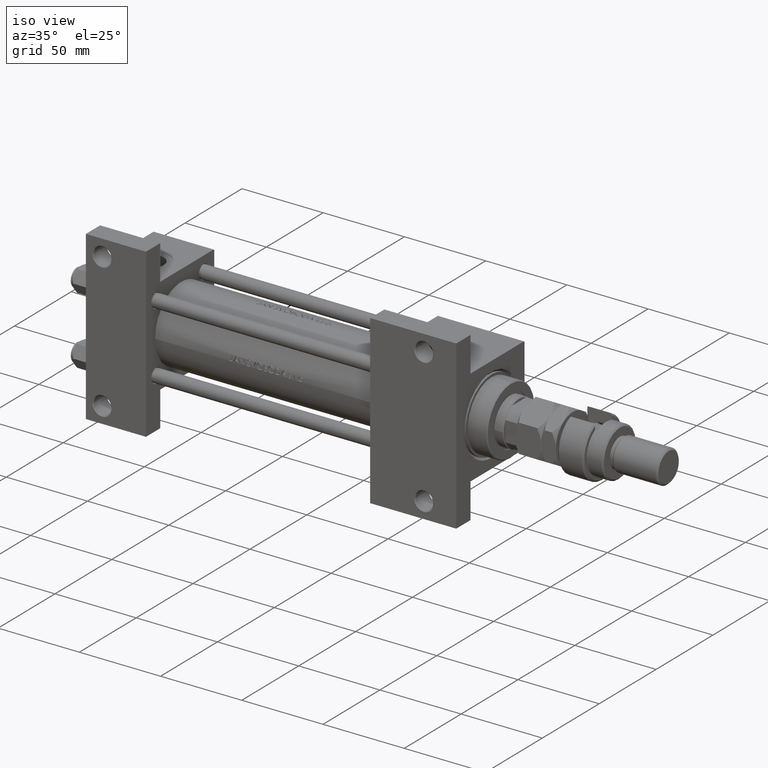
[diagram: clean part render]
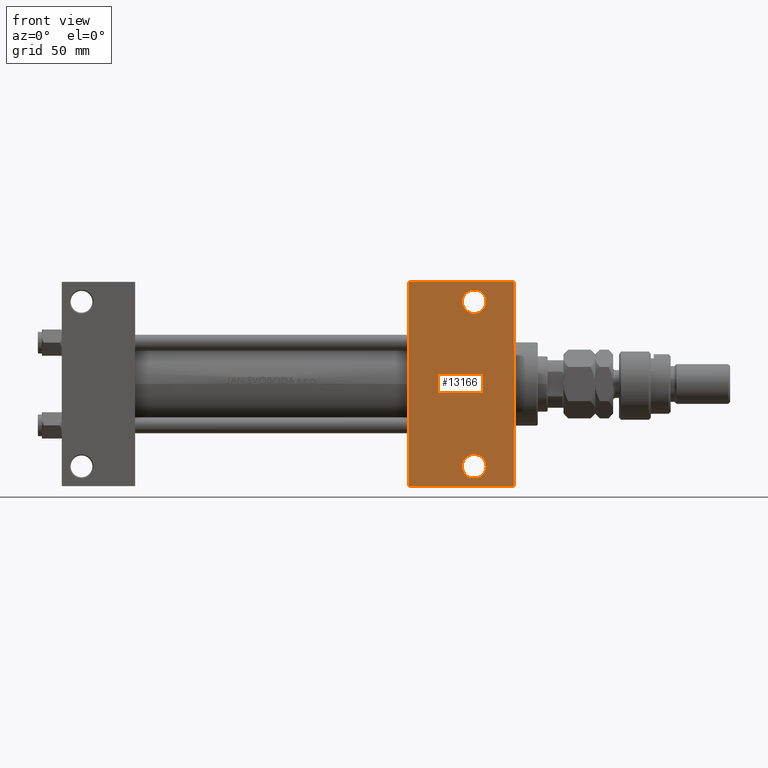
[diagram: tour spotlight — one face highlighted and labeled with its STEP entity id]
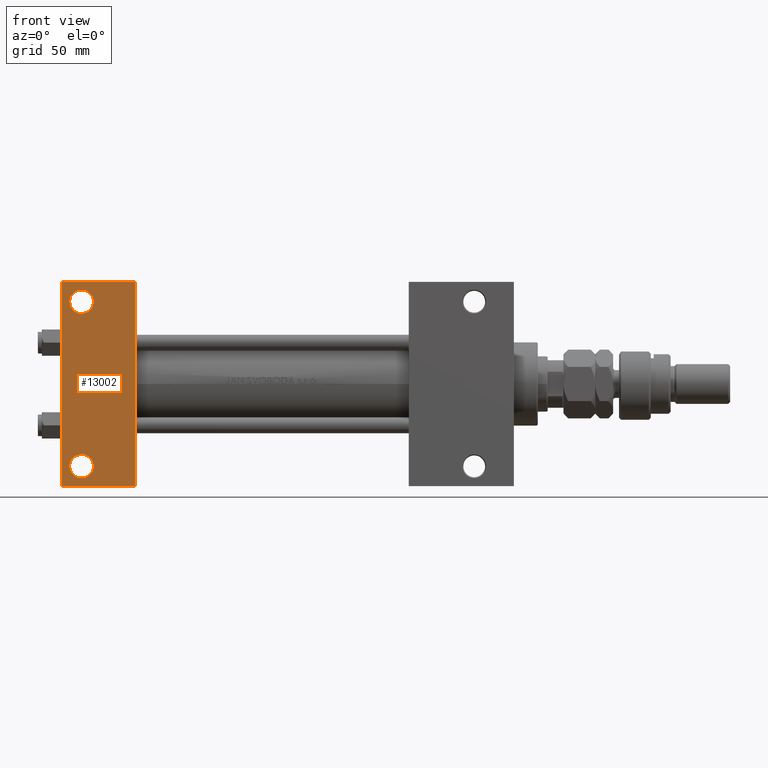
[diagram: tour spotlight — one face highlighted and labeled with its STEP entity id]
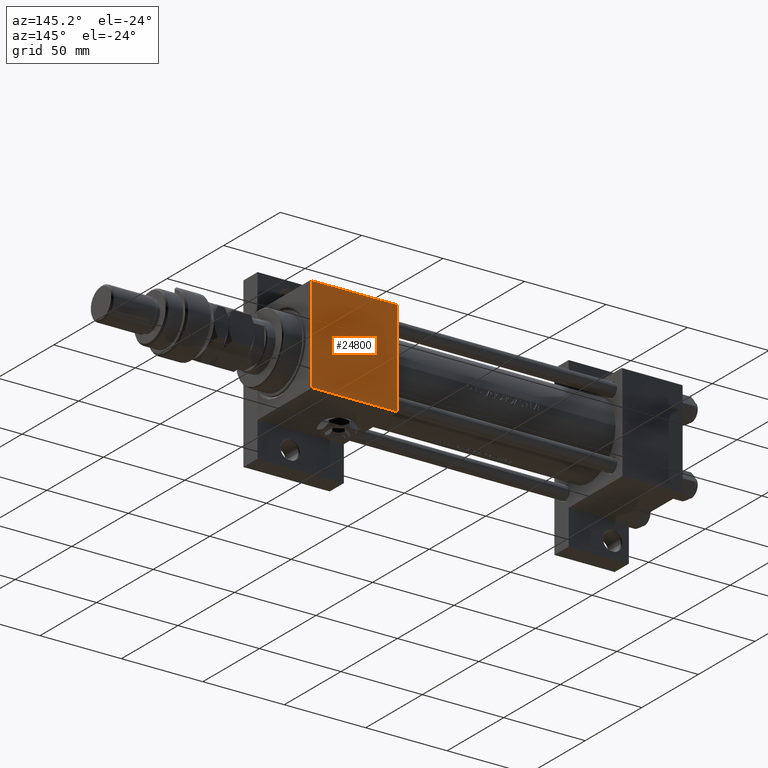
[diagram: tour spotlight — one face highlighted and labeled with its STEP entity id]
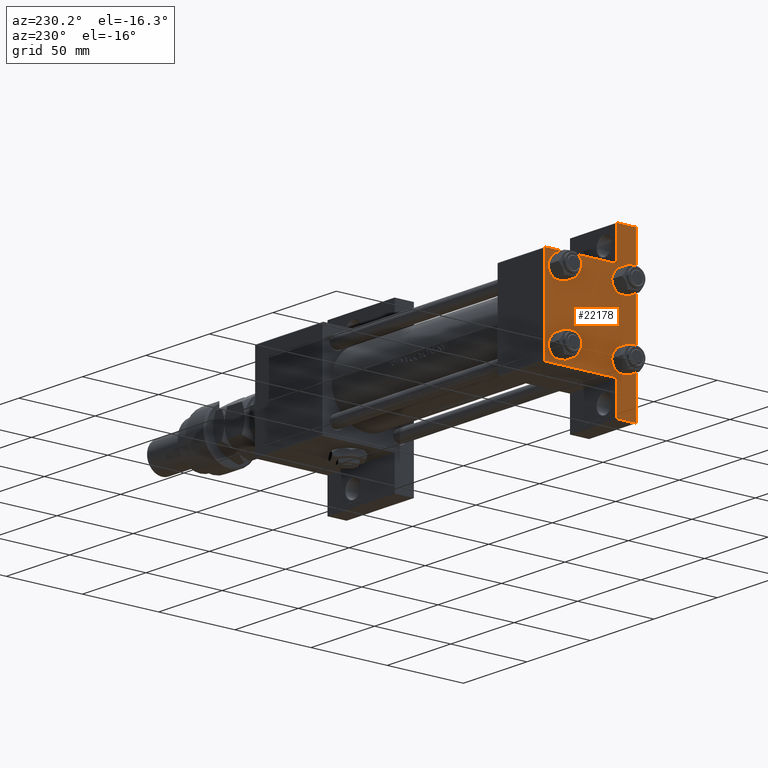
[diagram: tour spotlight — one face highlighted and labeled with its STEP entity id]
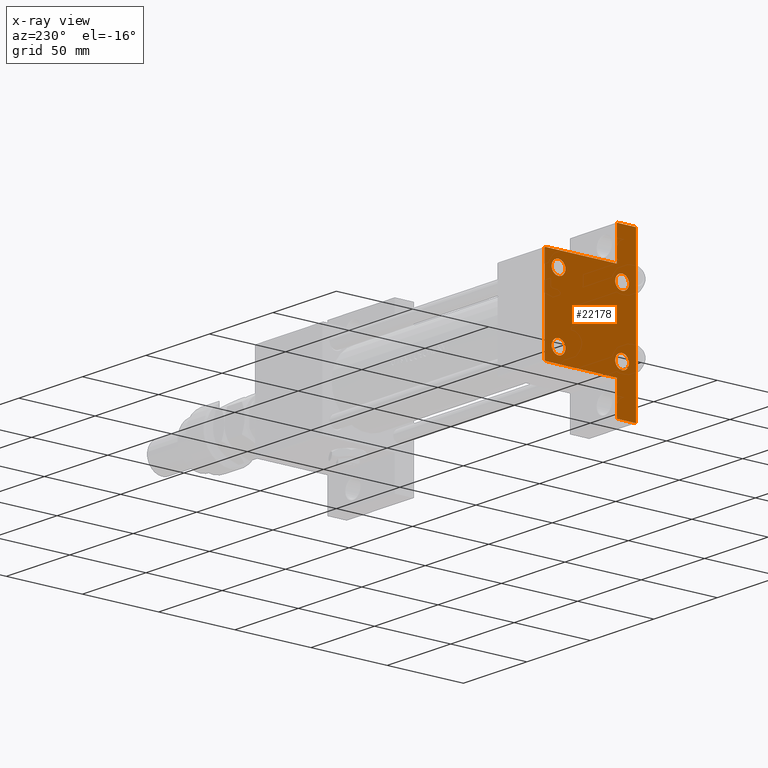
[diagram: x-ray of the same camera — body ghosted, this tour face saturated]
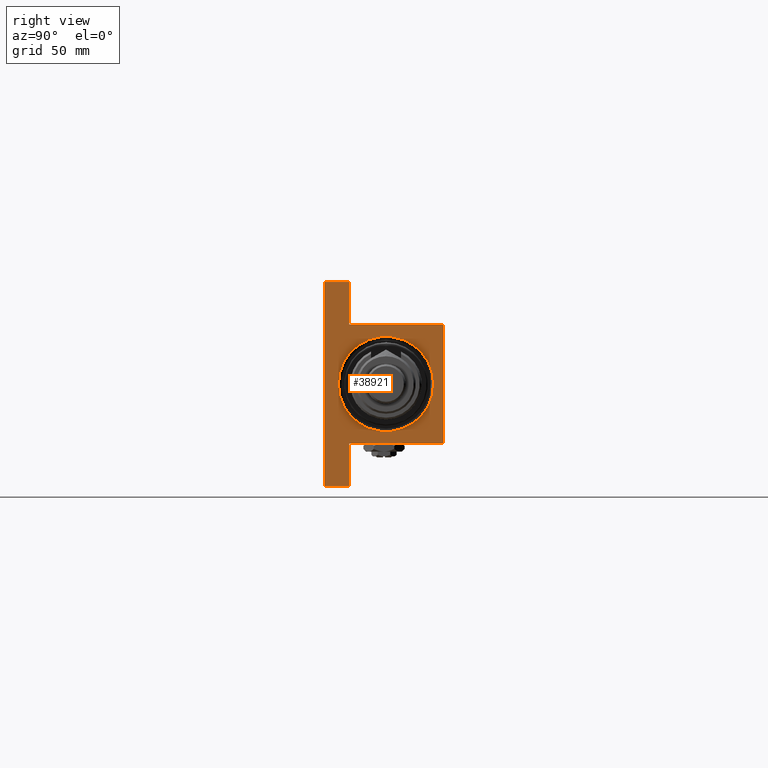
[diagram: tour spotlight — one face highlighted and labeled with its STEP entity id]
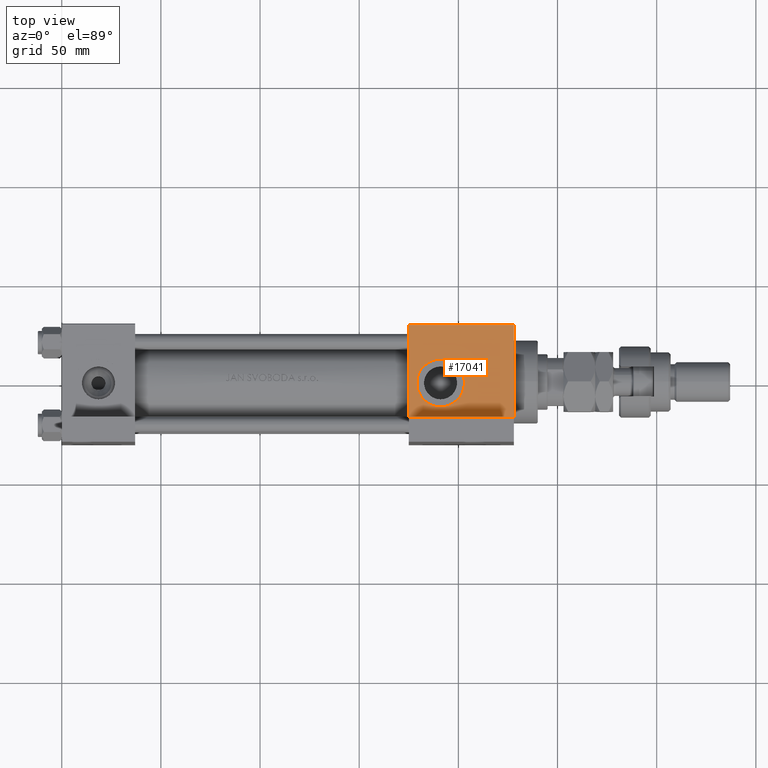
[diagram: tour spotlight — one face highlighted and labeled with its STEP entity id]
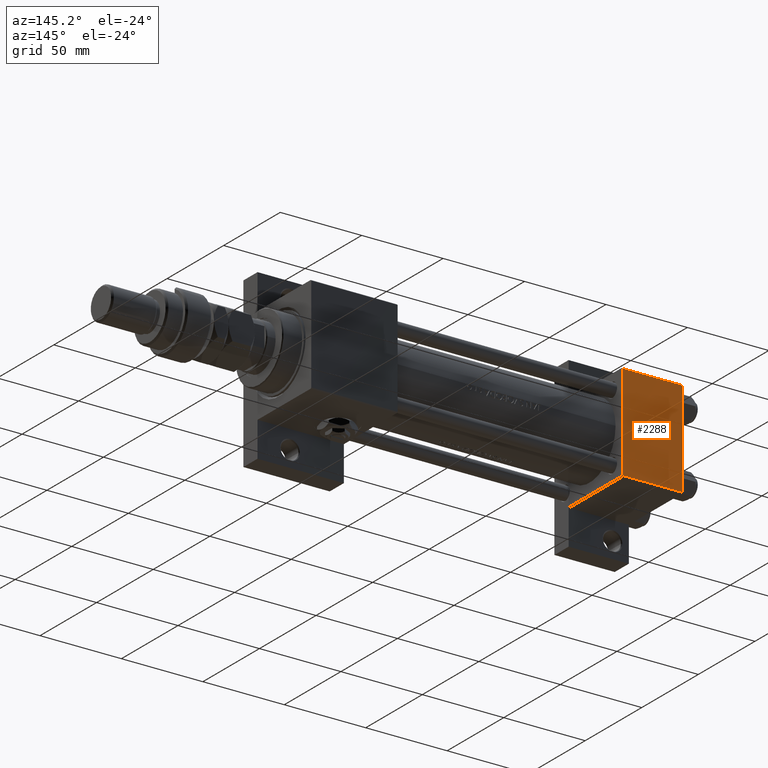
[diagram: tour spotlight — one face highlighted and labeled with its STEP entity id]
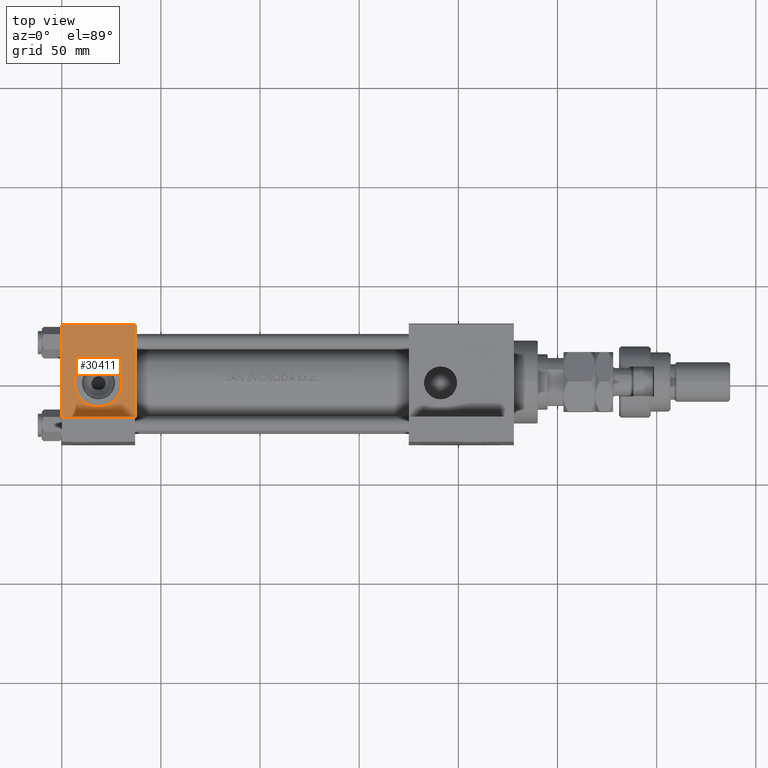
[diagram: tour spotlight — one face highlighted and labeled with its STEP entity id]
A machine part: a face-by-face anatomy tour. The part has 1220 B-rep faces; the first image is the clean iso view, then the 8 largest visible faces are spotlighted one at a time (largest first), each with its STEP entity span.

Face 1 — front view, entity #13166. In plain terms, the highlighted planar face has unit normal (0, -1, -0).
Definition (entity closure, byte-faithful):
#815 = CARTESIAN_POINT ( 'NONE',  ( 175.0000000000000284, -51.50000000000001421, -29.99999999999999645 ) ) ;
#914 = DIRECTION ( 'NONE',  ( -0.000000000000000000, -1.156482317317871478E-16, 1.000000000000000000 ) ) ;
#1617 = AXIS2_PLACEMENT_3D ( 'NONE', #31552, #11762, #32072 ) ;
#2023 = VERTEX_POINT ( 'NONE', #11838 ) ;
#2364 = EDGE_CURVE ( 'NONE', #44846, #30153, #34145, .T. ) ;
#2690 = ORIENTED_EDGE ( 'NONE', *, *, #21421, .T. ) ;
#3038 = ORIENTED_EDGE ( 'NONE', *, *, #2364, .T. ) ;
#3190 = VERTEX_POINT ( 'NONE', #47381 ) ;
#3395 = CARTESIAN_POINT ( 'NONE',  ( 175.0000000000000284, 30.00000000000000000, -29.99999999999999289 ) ) ;
#3881 = CARTESIAN_POINT ( 'NONE',  ( 228.0000000000000284, -51.50000000000000711, -29.99999999999999645 ) ) ;
#4472 = DIRECTION ( 'NONE',  ( -0.000000000000000000, -1.156482317317871478E-16, 1.000000000000000000 ) ) ;
#7073 = VERTEX_POINT ( 'NONE', #45793 ) ;
#7499 = EDGE_CURVE ( 'NONE', #41431, #8951, #19320, .T. ) ;
#8314 = FACE_BOUND ( 'NONE', #14612, .T. ) ;
#8920 = CARTESIAN_POINT ( 'NONE',  ( 208.0000000000000284, 41.49999999999999289, -29.99999999999999289 ) ) ;
#8951 = VERTEX_POINT ( 'NONE', #3881 ) ;
#9760 = LINE ( 'NONE', #815, #20271 ) ;
#11762 = DIRECTION ( 'NONE',  ( 0.000000000000000000, 1.156482317317871478E-16, -1.000000000000000000 ) ) ;
#11838 = CARTESIAN_POINT ( 'NONE',  ( 175.0000000000000284, -51.50000000000001421, -29.99999999999999645 ) ) ;
#11865 = CARTESIAN_POINT ( 'NONE',  ( 175.0000000000000284, 51.49999999999998579, -29.99999999999999645 ) ) ;
#12521 = AXIS2_PLACEMENT_3D ( 'NONE', #39578, #4472, #28216 ) ;
#13166 = ADVANCED_FACE ( 'NONE', ( #8314, #19438, #48172 ), #43441, .T. ) ;
#13363 = CARTESIAN_POINT ( 'NONE',  ( 213.9994999999999266, -41.49999999999999289, -30.00000000000000000 ) ) ;
#14128 = CIRCLE ( 'NONE', #38558, 5.999499999999935440 ) ;
#14612 = EDGE_LOOP ( 'NONE', ( #28743, #21119 ) ) ;
#17333 = AXIS2_PLACEMENT_3D ( 'NONE', #45753, #914, #29663 ) ;
#17961 = EDGE_CURVE ( 'NONE', #7073, #2023, #50646, .T. ) ;
#19320 = LINE ( 'NONE', #31440, #46018 ) ;
#19438 = FACE_BOUND ( 'NONE', #46023, .T. ) ;
#19544 = CARTESIAN_POINT ( 'NONE',  ( 228.0000000000000284, 51.49999999999996447, -29.99999999999999645 ) ) ;
#20271 = VECTOR ( 'NONE', #40910, 1000.000000000000000 ) ;
#20555 = DIRECTION ( 'NONE',  ( -0.000000000000000000, -1.156482317317871478E-16, 1.000000000000000000 ) ) ;
#21119 = ORIENTED_EDGE ( 'NONE', *, *, #44877, .T. ) ;
#21159 = AXIS2_PLACEMENT_3D ( 'NONE', #8920, #30020, #45333 ) ;
#21421 = EDGE_CURVE ( 'NONE', #30153, #44846, #25200, .T. ) ;
#24602 = VECTOR ( 'NONE', #26373, 1000.000000000000000 ) ;
#25200 = CIRCLE ( 'NONE', #12521, 5.999499999999935440 ) ;
#25657 = ORIENTED_EDGE ( 'NONE', *, *, #17961, .F. ) ;
#26244 = EDGE_CURVE ( 'NONE', #3190, #43559, #30405, .T. ) ;
#26373 = DIRECTION ( 'NONE',  ( 0.000000000000000000, -1.000000000000000000, -1.156482317317871478E-16 ) ) ;
#28008 = EDGE_CURVE ( 'NONE', #8951, #2023, #9760, .T. ) ;
#28216 = DIRECTION ( 'NONE',  ( 0.000000000000000000, 1.000000000000000000, 0.000000000000000000 ) ) ;
#28743 = ORIENTED_EDGE ( 'NONE', *, *, #26244, .T. ) ;
#29502 = CARTESIAN_POINT ( 'NONE',  ( 213.9994999999999550, 41.49999999999999289, -29.99999999999999289 ) ) ;
#29663 = DIRECTION ( 'NONE',  ( 0.000000000000000000, 1.000000000000000000, 0.000000000000000000 ) ) ;
#30020 = DIRECTION ( 'NONE',  ( -0.000000000000000000, -1.156482317317871478E-16, 1.000000000000000000 ) ) ;
#30153 = VERTEX_POINT ( 'NONE', #13363 ) ;
#30405 = CIRCLE ( 'NONE', #21159, 5.999499999999935440 ) ;
#31440 = CARTESIAN_POINT ( 'NONE',  ( 228.0000000000000000, 30.00000000000000000, -29.99999999999999289 ) ) ;
#31552 = CARTESIAN_POINT ( 'NONE',  ( 228.0000000000000000, 30.00000000000000000, -29.99999999999999289 ) ) ;
#31649 = DIRECTION ( 'NONE',  ( 1.000000000000000000, -3.927675794664467405E-16, 0.000000000000000000 ) ) ;
#32072 = DIRECTION ( 'NONE',  ( 0.000000000000000000, 1.000000000000000000, 1.156482317317871478E-16 ) ) ;
#34145 = CIRCLE ( 'NONE', #17333, 5.999499999999935440 ) ;
#35497 = ORIENTED_EDGE ( 'NONE', *, *, #49657, .T. ) ;
#36888 = VECTOR ( 'NONE', #31649, 1000.000000000000000 ) ;
#37166 = CARTESIAN_POINT ( 'NONE',  ( 208.0000000000000284, 41.49999999999999289, -29.99999999999999289 ) ) ;
#38558 = AXIS2_PLACEMENT_3D ( 'NONE', #37166, #20555, #40608 ) ;
#39578 = CARTESIAN_POINT ( 'NONE',  ( 208.0000000000000000, -41.49999999999999289, -30.00000000000000000 ) ) ;
#40608 = DIRECTION ( 'NONE',  ( 0.000000000000000000, 1.000000000000000000, 0.000000000000000000 ) ) ;
#40910 = DIRECTION ( 'NONE',  ( -1.000000000000000000, -1.309225264888155637E-16, -0.000000000000000000 ) ) ;
#41431 = VERTEX_POINT ( 'NONE', #19544 ) ;
#43441 = PLANE ( 'NONE',  #1617 ) ;
#43559 = VERTEX_POINT ( 'NONE', #29502 ) ;
#44846 = VERTEX_POINT ( 'NONE', #49577 ) ;
#44877 = EDGE_CURVE ( 'NONE', #43559, #3190, #14128, .T. ) ;
#44907 = ORIENTED_EDGE ( 'NONE', *, *, #28008, .T. ) ;
#45333 = DIRECTION ( 'NONE',  ( 0.000000000000000000, 1.000000000000000000, 0.000000000000000000 ) ) ;
#45753 = CARTESIAN_POINT ( 'NONE',  ( 208.0000000000000000, -41.49999999999999289, -30.00000000000000000 ) ) ;
#45793 = CARTESIAN_POINT ( 'NONE',  ( 175.0000000000000284, 51.49999999999998579, -29.99999999999999645 ) ) ;
#46018 = VECTOR ( 'NONE', #47544, 1000.000000000000000 ) ;
#46023 = EDGE_LOOP ( 'NONE', ( #3038, #2690 ) ) ;
#46732 = ORIENTED_EDGE ( 'NONE', *, *, #7499, .T. ) ;
#47381 = CARTESIAN_POINT ( 'NONE',  ( 202.0005000000000734, 41.49999999999999289, -29.99999999999999289 ) ) ;
#47544 = DIRECTION ( 'NONE',  ( 0.000000000000000000, -1.000000000000000000, -1.156482317317871478E-16 ) ) ;
#48172 = FACE_OUTER_BOUND ( 'NONE', #51286, .T. ) ;
#49577 = CARTESIAN_POINT ( 'NONE',  ( 202.0005000000000450, -41.49999999999999289, -30.00000000000000000 ) ) ;
#49657 = EDGE_CURVE ( 'NONE', #7073, #41431, #51972, .T. ) ;
#50646 = LINE ( 'NONE', #3395, #24602 ) ;
#51286 = EDGE_LOOP ( 'NONE', ( #25657, #35497, #46732, #44907 ) ) ;
#51972 = LINE ( 'NONE', #11865, #36888 ) ;

Face 2 — front view, entity #13002. In plain terms, the highlighted planar face has unit normal (0, -1, -0).
Definition (entity closure, byte-faithful):
#893 = CIRCLE ( 'NONE', #8428, 5.999499999999935440 ) ;
#1320 = DIRECTION ( 'NONE',  ( -1.000000000000000000, 1.875376730785737473E-16, -0.000000000000000000 ) ) ;
#2534 = DIRECTION ( 'NONE',  ( 0.000000000000000000, -1.000000000000000000, -1.156482317317871725E-16 ) ) ;
#3143 = EDGE_CURVE ( 'NONE', #4467, #27575, #6727, .T. ) ;
#3198 = ORIENTED_EDGE ( 'NONE', *, *, #43981, .T. ) ;
#3391 = VERTEX_POINT ( 'NONE', #34898 ) ;
#4467 = VERTEX_POINT ( 'NONE', #48149 ) ;
#5020 = PLANE ( 'NONE',  #10038 ) ;
#5699 = VERTEX_POINT ( 'NONE', #20792 ) ;
#5859 = CARTESIAN_POINT ( 'NONE',  ( 37.00000000000000000, -51.50000000000000000, -29.99999999999999289 ) ) ;
#5930 = DIRECTION ( 'NONE',  ( 1.000000000000000000, -1.875376730785737473E-16, 0.000000000000000000 ) ) ;
#6727 = LINE ( 'NONE', #29527, #45152 ) ;
#7945 = EDGE_CURVE ( 'NONE', #50499, #32158, #29182, .T. ) ;
#8023 = EDGE_LOOP ( 'NONE', ( #30318, #3198, #44573, #23361 ) ) ;
#8121 = AXIS2_PLACEMENT_3D ( 'NONE', #20646, #9023, #32763 ) ;
#8396 = EDGE_CURVE ( 'NONE', #5699, #3391, #14044, .T. ) ;
#8428 = AXIS2_PLACEMENT_3D ( 'NONE', #51626, #43190, #24638 ) ;
#8448 = CARTESIAN_POINT ( 'NONE',  ( 37.00000000000000000, 29.99999999999999289, -30.00000000000000000 ) ) ;
#8749 = EDGE_CURVE ( 'NONE', #32158, #50499, #30901, .T. ) ;
#9023 = DIRECTION ( 'NONE',  ( -0.000000000000000000, -1.156482317317871725E-16, 1.000000000000000000 ) ) ;
#9896 = CARTESIAN_POINT ( 'NONE',  ( 15.99949999999993366, 41.49999999999996447, -30.00000000000000000 ) ) ;
#10038 = AXIS2_PLACEMENT_3D ( 'NONE', #8448, #40911, #20861 ) ;
#10743 = LINE ( 'NONE', #22891, #20955 ) ;
#13002 = ADVANCED_FACE ( 'NONE', ( #44606, #16132, #32726 ), #5020, .T. ) ;
#13184 = EDGE_LOOP ( 'NONE', ( #22671, #41032 ) ) ;
#13584 = DIRECTION ( 'NONE',  ( 0.000000000000000000, 1.000000000000000000, 0.000000000000000000 ) ) ;
#14044 = CIRCLE ( 'NONE', #18270, 5.999499999999935440 ) ;
#15549 = VECTOR ( 'NONE', #1320, 1000.000000000000000 ) ;
#16132 = FACE_BOUND ( 'NONE', #37483, .T. ) ;
#18112 = DIRECTION ( 'NONE',  ( -0.000000000000000000, -1.156482317317871725E-16, 1.000000000000000000 ) ) ;
#18270 = AXIS2_PLACEMENT_3D ( 'NONE', #45506, #22007, #13584 ) ;
#20646 = CARTESIAN_POINT ( 'NONE',  ( 9.999999999999998224, 41.49999999999996447, -30.00000000000000000 ) ) ;
#20792 = CARTESIAN_POINT ( 'NONE',  ( 4.000500000000062784, -41.50000000000002132, -30.00000000000000711 ) ) ;
#20846 = ORIENTED_EDGE ( 'NONE', *, *, #28362, .T. ) ;
#20861 = DIRECTION ( 'NONE',  ( 0.000000000000000000, 1.000000000000000000, 1.156482317317871725E-16 ) ) ;
#20955 = VECTOR ( 'NONE', #47420, 1000.000000000000000 ) ;
#22007 = DIRECTION ( 'NONE',  ( -0.000000000000000000, -1.156482317317871725E-16, 1.000000000000000000 ) ) ;
#22671 = ORIENTED_EDGE ( 'NONE', *, *, #8749, .T. ) ;
#22734 = CARTESIAN_POINT ( 'NONE',  ( 1.301158300671771401E-14, 51.50000000000000711, -30.00000000000001421 ) ) ;
#22891 = CARTESIAN_POINT ( 'NONE',  ( 0.000000000000000000, 29.99999999999999289, -30.00000000000000000 ) ) ;
#23361 = ORIENTED_EDGE ( 'NONE', *, *, #41610, .T. ) ;
#24638 = DIRECTION ( 'NONE',  ( 0.000000000000000000, 1.000000000000000000, 0.000000000000000000 ) ) ;
#24984 = VECTOR ( 'NONE', #5930, 1000.000000000000000 ) ;
#25777 = DIRECTION ( 'NONE',  ( 0.000000000000000000, 1.000000000000000000, 0.000000000000000000 ) ) ;
#26482 = VERTEX_POINT ( 'NONE', #29952 ) ;
#27528 = ORIENTED_EDGE ( 'NONE', *, *, #8396, .T. ) ;
#27575 = VERTEX_POINT ( 'NONE', #5859 ) ;
#28362 = EDGE_CURVE ( 'NONE', #3391, #5699, #893, .T. ) ;
#29182 = CIRCLE ( 'NONE', #42660, 5.999499999999935440 ) ;
#29458 = CARTESIAN_POINT ( 'NONE',  ( 4.000500000000062784, 41.49999999999996447, -30.00000000000000000 ) ) ;
#29527 = CARTESIAN_POINT ( 'NONE',  ( 37.00000000000000000, 29.99999999999999289, -30.00000000000000000 ) ) ;
#29952 = CARTESIAN_POINT ( 'NONE',  ( 3.977209754999747208E-16, -51.49999999999999289, -29.99999999999999289 ) ) ;
#30318 = ORIENTED_EDGE ( 'NONE', *, *, #50235, .F. ) ;
#30901 = CIRCLE ( 'NONE', #8121, 5.999499999999935440 ) ;
#32158 = VERTEX_POINT ( 'NONE', #29458 ) ;
#32726 = FACE_OUTER_BOUND ( 'NONE', #8023, .T. ) ;
#32763 = DIRECTION ( 'NONE',  ( 0.000000000000000000, 1.000000000000000000, 0.000000000000000000 ) ) ;
#34009 = LINE ( 'NONE', #49602, #15549 ) ;
#34162 = LINE ( 'NONE', #42094, #24984 ) ;
#34898 = CARTESIAN_POINT ( 'NONE',  ( 15.99949999999993366, -41.50000000000002132, -30.00000000000000711 ) ) ;
#37483 = EDGE_LOOP ( 'NONE', ( #27528, #20846 ) ) ;
#37626 = CARTESIAN_POINT ( 'NONE',  ( 9.999999999999998224, 41.49999999999996447, -30.00000000000000000 ) ) ;
#40911 = DIRECTION ( 'NONE',  ( 0.000000000000000000, 1.156482317317871725E-16, -1.000000000000000000 ) ) ;
#41032 = ORIENTED_EDGE ( 'NONE', *, *, #7945, .T. ) ;
#41370 = VERTEX_POINT ( 'NONE', #22734 ) ;
#41610 = EDGE_CURVE ( 'NONE', #27575, #26482, #34009, .T. ) ;
#42094 = CARTESIAN_POINT ( 'NONE',  ( 1.301158300671771401E-14, 51.50000000000000711, -30.00000000000001421 ) ) ;
#42660 = AXIS2_PLACEMENT_3D ( 'NONE', #37626, #18112, #25777 ) ;
#43190 = DIRECTION ( 'NONE',  ( -0.000000000000000000, -1.156482317317871725E-16, 1.000000000000000000 ) ) ;
#43981 = EDGE_CURVE ( 'NONE', #41370, #4467, #34162, .T. ) ;
#44573 = ORIENTED_EDGE ( 'NONE', *, *, #3143, .T. ) ;
#44606 = FACE_BOUND ( 'NONE', #13184, .T. ) ;
#45152 = VECTOR ( 'NONE', #2534, 1000.000000000000000 ) ;
#45506 = CARTESIAN_POINT ( 'NONE',  ( 9.999999999999998224, -41.50000000000002132, -30.00000000000000711 ) ) ;
#47420 = DIRECTION ( 'NONE',  ( 0.000000000000000000, -1.000000000000000000, -1.156482317317871725E-16 ) ) ;
#48149 = CARTESIAN_POINT ( 'NONE',  ( 37.00000000000001421, 51.50000000000000000, -30.00000000000001421 ) ) ;
#49602 = CARTESIAN_POINT ( 'NONE',  ( 3.977209754999747208E-16, -51.49999999999999289, -29.99999999999999289 ) ) ;
#50235 = EDGE_CURVE ( 'NONE', #41370, #26482, #10743, .T. ) ;
#50499 = VERTEX_POINT ( 'NONE', #9896 ) ;
#51626 = CARTESIAN_POINT ( 'NONE',  ( 9.999999999999998224, -41.50000000000002132, -30.00000000000000711 ) ) ;

Face 3 — auxiliary view, entity #24800. In plain terms, the highlighted planar face has unit normal (0, -1, -0).
Definition (entity closure, byte-faithful):
#1890 = CARTESIAN_POINT ( 'NONE',  ( 175.0000000000000284, 30.00000000000000000, 30.00000000000000000 ) ) ;
#5918 = DIRECTION ( 'NONE',  ( 0.000000000000000000, -1.000000000000000000, -1.156482317317871478E-16 ) ) ;
#6331 = LINE ( 'NONE', #1890, #42307 ) ;
#6373 = CARTESIAN_POINT ( 'NONE',  ( 175.0000000000000284, -29.50000000000000000, 29.99999999999999289 ) ) ;
#7858 = LINE ( 'NONE', #16080, #40299 ) ;
#11622 = ORIENTED_EDGE ( 'NONE', *, *, #19963, .T. ) ;
#12299 = CARTESIAN_POINT ( 'NONE',  ( 175.0000000000000284, 29.50000000000000000, 30.00000000000000000 ) ) ;
#15351 = DIRECTION ( 'NONE',  ( 0.000000000000000000, 1.000000000000000000, 1.156482317317871478E-16 ) ) ;
#16080 = CARTESIAN_POINT ( 'NONE',  ( 228.0000000000000000, -29.50000000000000000, 29.99999999999999289 ) ) ;
#16179 = VERTEX_POINT ( 'NONE', #29716 ) ;
#16386 = VECTOR ( 'NONE', #5918, 1000.000000000000000 ) ;
#17988 = DIRECTION ( 'NONE',  ( 0.000000000000000000, -1.000000000000000000, -1.156482317317871478E-16 ) ) ;
#19963 = EDGE_CURVE ( 'NONE', #25603, #38034, #7858, .T. ) ;
#22212 = ORIENTED_EDGE ( 'NONE', *, *, #40347, .F. ) ;
#24800 = ADVANCED_FACE ( 'NONE', ( #38833 ), #47530, .F. ) ;
#25603 = VERTEX_POINT ( 'NONE', #6373 ) ;
#26074 = CARTESIAN_POINT ( 'NONE',  ( 175.0000000000000284, 29.50000000000000000, 30.00000000000000000 ) ) ;
#26201 = VECTOR ( 'NONE', #43199, 1000.000000000000000 ) ;
#27392 = EDGE_LOOP ( 'NONE', ( #22212, #29166, #35951, #11622 ) ) ;
#29166 = ORIENTED_EDGE ( 'NONE', *, *, #29170, .T. ) ;
#29170 = EDGE_CURVE ( 'NONE', #16179, #51280, #30273, .T. ) ;
#29716 = CARTESIAN_POINT ( 'NONE',  ( 228.0000000000000000, 29.50000000000000000, 30.00000000000000000 ) ) ;
#30273 = LINE ( 'NONE', #26074, #26201 ) ;
#30645 = CARTESIAN_POINT ( 'NONE',  ( 228.0000000000000000, 30.00000000000000000, 30.00000000000000000 ) ) ;
#32595 = EDGE_CURVE ( 'NONE', #51280, #25603, #6331, .T. ) ;
#35951 = ORIENTED_EDGE ( 'NONE', *, *, #32595, .T. ) ;
#38034 = VERTEX_POINT ( 'NONE', #47996 ) ;
#38363 = LINE ( 'NONE', #50000, #16386 ) ;
#38833 = FACE_OUTER_BOUND ( 'NONE', #27392, .T. ) ;
#39344 = DIRECTION ( 'NONE',  ( 0.000000000000000000, 1.156482317317871478E-16, -1.000000000000000000 ) ) ;
#40299 = VECTOR ( 'NONE', #48248, 1000.000000000000000 ) ;
#40347 = EDGE_CURVE ( 'NONE', #16179, #38034, #38363, .T. ) ;
#42307 = VECTOR ( 'NONE', #17988, 1000.000000000000000 ) ;
#43199 = DIRECTION ( 'NONE',  ( -1.000000000000000000, 0.000000000000000000, 0.000000000000000000 ) ) ;
#47530 = PLANE ( 'NONE',  #51472 ) ;
#47996 = CARTESIAN_POINT ( 'NONE',  ( 228.0000000000000000, -29.50000000000000000, 29.99999999999999289 ) ) ;
#48248 = DIRECTION ( 'NONE',  ( 1.000000000000000000, 0.000000000000000000, 0.000000000000000000 ) ) ;
#50000 = CARTESIAN_POINT ( 'NONE',  ( 228.0000000000000000, 30.00000000000000000, 30.00000000000000000 ) ) ;
#51280 = VERTEX_POINT ( 'NONE', #12299 ) ;
#51472 = AXIS2_PLACEMENT_3D ( 'NONE', #30645, #39344, #15351 ) ;

Face 4 — auxiliary view, entity #22178. An x-ray twin of the same camera follows (body ghosted, this face saturated) — the face is partly hidden behind the body. In plain terms, the highlighted planar face has unit normal (-1, 0, -0).
Definition (entity closure, byte-faithful):
#10 = DIRECTION ( 'NONE',  ( 0.000000000000000000, 0.000000000000000000, -1.000000000000000000 ) ) ;
#321 = EDGE_CURVE ( 'NONE', #17532, #48010, #33140, .T. ) ;
#1915 = ORIENTED_EDGE ( 'NONE', *, *, #11813, .F. ) ;
#2075 = ORIENTED_EDGE ( 'NONE', *, *, #47194, .F. ) ;
#2279 = EDGE_LOOP ( 'NONE', ( #43161, #25893 ) ) ;
#2549 = ORIENTED_EDGE ( 'NONE', *, *, #35024, .T. ) ;
#2877 = CARTESIAN_POINT ( 'NONE',  ( 3.977209754999747208E-16, -51.49999999999998579, 25.29310692155925366 ) ) ;
#3453 = LINE ( 'NONE', #40361, #14753 ) ;
#4709 = EDGE_CURVE ( 'NONE', #24670, #45888, #3453, .T. ) ;
#4740 = CARTESIAN_POINT ( 'NONE',  ( 0.000000000000000000, 29.49999999999999289, 30.00000000000000000 ) ) ;
#5790 = VERTEX_POINT ( 'NONE', #13918 ) ;
#6062 = AXIS2_PLACEMENT_3D ( 'NONE', #30874, #46203, #46982 ) ;
#6206 = VERTEX_POINT ( 'NONE', #18855 ) ;
#6452 = CARTESIAN_POINT ( 'NONE',  ( 0.000000000000000000, -29.49999999999998579, 29.99999999999999289 ) ) ;
#6591 = CARTESIAN_POINT ( 'NONE',  ( 0.000000000000000000, -20.84999999999999076, 20.85000000000000497 ) ) ;
#6608 = AXIS2_PLACEMENT_3D ( 'NONE', #25961, #42301, #30156 ) ;
#7348 = DIRECTION ( 'NONE',  ( 0.000000000000000000, 0.000000000000000000, 1.000000000000000000 ) ) ;
#9598 = CARTESIAN_POINT ( 'NONE',  ( 0.000000000000000000, -20.84999999999999076, 20.85000000000000497 ) ) ;
#9787 = DIRECTION ( 'NONE',  ( 0.000000000000000000, 0.000000000000000000, 1.000000000000000000 ) ) ;
#10500 = CIRCLE ( 'NONE', #46750, 4.500000000000017764 ) ;
#10743 = LINE ( 'NONE', #22891, #20955 ) ;
#11039 = CARTESIAN_POINT ( 'NONE',  ( -7.145701223179007990E-16, -29.99999999999999645, -17.49999999999999645 ) ) ;
#11088 = ORIENTED_EDGE ( 'NONE', *, *, #38119, .T. ) ;
#11427 = VERTEX_POINT ( 'NONE', #34142 ) ;
#11804 = ORIENTED_EDGE ( 'NONE', *, *, #32590, .T. ) ;
#11813 = EDGE_CURVE ( 'NONE', #5790, #26482, #39008, .T. ) ;
#12197 = VECTOR ( 'NONE', #29775, 1000.000000000000114 ) ;
#12555 = AXIS2_PLACEMENT_3D ( 'NONE', #43262, #27431, #7348 ) ;
#12680 = CARTESIAN_POINT ( 'NONE',  ( 0.000000000000000000, -20.84999999999999076, 16.34999999999998721 ) ) ;
#12862 = DIRECTION ( 'NONE',  ( 0.000000000000000000, -1.000000000000000000, -1.156482317317871725E-16 ) ) ;
#13098 = CARTESIAN_POINT ( 'NONE',  ( 0.000000000000000000, 20.84999999999999787, -20.85000000000000142 ) ) ;
#13702 = EDGE_LOOP ( 'NONE', ( #20910, #17094 ) ) ;
#13737 = LINE ( 'NONE', #22422, #34006 ) ;
#13918 = CARTESIAN_POINT ( 'NONE',  ( 3.977209754999747208E-16, -51.49999999999999289, -17.49999999999999645 ) ) ;
#14231 = CIRCLE ( 'NONE', #6608, 4.500000000000017764 ) ;
#14249 = AXIS2_PLACEMENT_3D ( 'NONE', #14778, #18995, #15037 ) ;
#14529 = ORIENTED_EDGE ( 'NONE', *, *, #37912, .T. ) ;
#14679 = VERTEX_POINT ( 'NONE', #18798 ) ;
#14753 = VECTOR ( 'NONE', #10, 1000.000000000000000 ) ;
#14778 = CARTESIAN_POINT ( 'NONE',  ( 0.000000000000000000, 0.000000000000000000, 0.000000000000000000 ) ) ;
#15037 = DIRECTION ( 'NONE',  ( -0.000000000000000000, 0.000000000000000000, 1.000000000000000000 ) ) ;
#15907 = LINE ( 'NONE', #28296, #52130 ) ;
#15970 = ORIENTED_EDGE ( 'NONE', *, *, #321, .F. ) ;
#16040 = CARTESIAN_POINT ( 'NONE',  ( 0.000000000000000000, -20.84999999999999076, -25.35000000000002274 ) ) ;
#16511 = EDGE_CURVE ( 'NONE', #14679, #11427, #37828, .T. ) ;
#16704 = EDGE_CURVE ( 'NONE', #45381, #48010, #15907, .T. ) ;
#16953 = VERTEX_POINT ( 'NONE', #19543 ) ;
#17094 = ORIENTED_EDGE ( 'NONE', *, *, #16511, .T. ) ;
#17532 = VERTEX_POINT ( 'NONE', #51863 ) ;
#17600 = CARTESIAN_POINT ( 'NONE',  ( 1.301158300671771559E-14, 51.50000000000001421, -17.49999999999999645 ) ) ;
#18283 = CARTESIAN_POINT ( 'NONE',  ( 0.000000000000000000, -20.84999999999999076, -16.34999999999998721 ) ) ;
#18488 = DIRECTION ( 'NONE',  ( 0.000000000000000000, 0.7071067811865474617, -0.7071067811865474617 ) ) ;
#18755 = DIRECTION ( 'NONE',  ( 1.000000000000000000, -0.000000000000000000, 0.000000000000000000 ) ) ;
#18781 = VERTEX_POINT ( 'NONE', #18283 ) ;
#18798 = CARTESIAN_POINT ( 'NONE',  ( 0.000000000000000000, 20.84999999999999787, 16.34999999999998366 ) ) ;
#18855 = CARTESIAN_POINT ( 'NONE',  ( 0.000000000000000000, 20.84999999999999787, -16.34999999999998366 ) ) ;
#18971 = DIRECTION ( 'NONE',  ( 0.000000000000000000, -1.734723475976807094E-16, -1.000000000000000000 ) ) ;
#18995 = DIRECTION ( 'NONE',  ( -1.000000000000000000, 0.000000000000000000, -0.000000000000000000 ) ) ;
#19268 = CIRCLE ( 'NONE', #38657, 4.500000000000017764 ) ;
#19345 = AXIS2_PLACEMENT_3D ( 'NONE', #26153, #18755, #9787 ) ;
#19543 = CARTESIAN_POINT ( 'NONE',  ( 0.000000000000000000, -20.84999999999999076, 25.35000000000002274 ) ) ;
#20354 = AXIS2_PLACEMENT_3D ( 'NONE', #13098, #37098, #49249 ) ;
#20561 = EDGE_CURVE ( 'NONE', #33887, #16953, #19268, .T. ) ;
#20910 = ORIENTED_EDGE ( 'NONE', *, *, #22160, .T. ) ;
#20955 = VECTOR ( 'NONE', #47420, 1000.000000000000000 ) ;
#22160 = EDGE_CURVE ( 'NONE', #11427, #14679, #36993, .T. ) ;
#22178 = ADVANCED_FACE ( 'NONE', ( #31885, #51178, #35590, #26921, #22962 ), #43773, .T. ) ;
#22422 = CARTESIAN_POINT ( 'NONE',  ( 1.301158300671771401E-14, 51.50000000000001421, 25.29310692155923590 ) ) ;
#22444 = DIRECTION ( 'NONE',  ( 1.000000000000000000, -0.000000000000000000, 0.000000000000000000 ) ) ;
#22734 = CARTESIAN_POINT ( 'NONE',  ( 1.301158300671771401E-14, 51.50000000000000711, -30.00000000000001421 ) ) ;
#22882 = CIRCLE ( 'NONE', #20354, 4.500000000000017764 ) ;
#22891 = CARTESIAN_POINT ( 'NONE',  ( 0.000000000000000000, 29.99999999999999289, -30.00000000000000000 ) ) ;
#22908 = EDGE_CURVE ( 'NONE', #6206, #26242, #35369, .T. ) ;
#22962 = FACE_OUTER_BOUND ( 'NONE', #32113, .T. ) ;
#23343 = CARTESIAN_POINT ( 'NONE',  ( 0.000000000000000000, -30.00000000000000000, 29.49999999999999289 ) ) ;
#23725 = LINE ( 'NONE', #39810, #47611 ) ;
#23772 = DIRECTION ( 'NONE',  ( 0.000000000000000000, 0.000000000000000000, 1.000000000000000000 ) ) ;
#24670 = VERTEX_POINT ( 'NONE', #23343 ) ;
#25713 = DIRECTION ( 'NONE',  ( 1.000000000000000000, -0.000000000000000000, 0.000000000000000000 ) ) ;
#25893 = ORIENTED_EDGE ( 'NONE', *, *, #20561, .T. ) ;
#25961 = CARTESIAN_POINT ( 'NONE',  ( 0.000000000000000000, -20.84999999999999076, -20.85000000000000497 ) ) ;
#25984 = VECTOR ( 'NONE', #18971, 1000.000000000000000 ) ;
#26153 = CARTESIAN_POINT ( 'NONE',  ( 0.000000000000000000, 20.84999999999999787, -20.85000000000000142 ) ) ;
#26242 = VERTEX_POINT ( 'NONE', #49042 ) ;
#26482 = VERTEX_POINT ( 'NONE', #29952 ) ;
#26921 = FACE_BOUND ( 'NONE', #13702, .T. ) ;
#27003 = AXIS2_PLACEMENT_3D ( 'NONE', #34602, #35633, #23772 ) ;
#27431 = DIRECTION ( 'NONE',  ( 1.000000000000000000, -0.000000000000000000, 0.000000000000000000 ) ) ;
#28296 = CARTESIAN_POINT ( 'NONE',  ( 0.000000000000000000, 29.99999999999999289, 30.00000000000000000 ) ) ;
#28508 = VECTOR ( 'NONE', #12862, 1000.000000000000000 ) ;
#29026 = EDGE_CURVE ( 'NONE', #45888, #5790, #37933, .T. ) ;
#29572 = DIRECTION ( 'NONE',  ( 0.000000000000000000, -1.734723475976807094E-16, -1.000000000000000000 ) ) ;
#29747 = ORIENTED_EDGE ( 'NONE', *, *, #16704, .T. ) ;
#29775 = DIRECTION ( 'NONE',  ( -0.000000000000000000, 0.7071067811865474617, 0.7071067811865474617 ) ) ;
#29952 = CARTESIAN_POINT ( 'NONE',  ( 3.977209754999747208E-16, -51.49999999999999289, -29.99999999999999289 ) ) ;
#30029 = LINE ( 'NONE', #45864, #12197 ) ;
#30156 = DIRECTION ( 'NONE',  ( 0.000000000000000000, 0.000000000000000000, 1.000000000000000000 ) ) ;
#30224 = EDGE_CURVE ( 'NONE', #26242, #6206, #22882, .T. ) ;
#30354 = DIRECTION ( 'NONE',  ( 0.000000000000000000, 0.000000000000000000, 1.000000000000000000 ) ) ;
#30874 = CARTESIAN_POINT ( 'NONE',  ( 0.000000000000000000, -20.84999999999999076, -20.85000000000000497 ) ) ;
#31276 = ORIENTED_EDGE ( 'NONE', *, *, #30224, .T. ) ;
#31885 = FACE_BOUND ( 'NONE', #2279, .T. ) ;
#32113 = EDGE_LOOP ( 'NONE', ( #32305, #11088, #2075, #14529, #29747, #15970, #2549, #32914, #1915, #34458 ) ) ;
#32305 = ORIENTED_EDGE ( 'NONE', *, *, #4709, .F. ) ;
#32590 = EDGE_CURVE ( 'NONE', #47128, #18781, #33902, .T. ) ;
#32914 = ORIENTED_EDGE ( 'NONE', *, *, #50235, .T. ) ;
#33140 = LINE ( 'NONE', #17600, #42513 ) ;
#33669 = DIRECTION ( 'NONE',  ( -2.966638294954184077E-16, -1.000000000000000000, 0.000000000000000000 ) ) ;
#33887 = VERTEX_POINT ( 'NONE', #12680 ) ;
#33902 = CIRCLE ( 'NONE', #6062, 4.500000000000017764 ) ;
#33946 = CARTESIAN_POINT ( 'NONE',  ( 0.000000000000000000, 29.99999999999999289, 30.00000000000000000 ) ) ;
#34006 = VECTOR ( 'NONE', #29572, 1000.000000000000000 ) ;
#34142 = CARTESIAN_POINT ( 'NONE',  ( 0.000000000000000000, 20.84999999999999787, 25.35000000000001918 ) ) ;
#34192 = ORIENTED_EDGE ( 'NONE', *, *, #51734, .T. ) ;
#34458 = ORIENTED_EDGE ( 'NONE', *, *, #29026, .F. ) ;
#34602 = CARTESIAN_POINT ( 'NONE',  ( 0.000000000000000000, 20.84999999999999787, 20.85000000000000142 ) ) ;
#35024 = EDGE_CURVE ( 'NONE', #17532, #41370, #13737, .T. ) ;
#35369 = CIRCLE ( 'NONE', #19345, 4.500000000000017764 ) ;
#35590 = FACE_BOUND ( 'NONE', #49050, .T. ) ;
#35633 = DIRECTION ( 'NONE',  ( 1.000000000000000000, -0.000000000000000000, 0.000000000000000000 ) ) ;
#36993 = CIRCLE ( 'NONE', #12555, 4.500000000000017764 ) ;
#37098 = DIRECTION ( 'NONE',  ( 1.000000000000000000, -0.000000000000000000, 0.000000000000000000 ) ) ;
#37404 = CARTESIAN_POINT ( 'NONE',  ( 3.977209754999743757E-16, -51.49999999999998579, -17.49999999999999645 ) ) ;
#37828 = CIRCLE ( 'NONE', #27003, 4.500000000000017764 ) ;
#37912 = EDGE_CURVE ( 'NONE', #38871, #45381, #23725, .T. ) ;
#37933 = LINE ( 'NONE', #37404, #49817 ) ;
#38119 = EDGE_CURVE ( 'NONE', #24670, #48034, #30029, .T. ) ;
#38606 = EDGE_CURVE ( 'NONE', #16953, #33887, #10500, .T. ) ;
#38657 = AXIS2_PLACEMENT_3D ( 'NONE', #6591, #22444, #30354 ) ;
#38871 = VERTEX_POINT ( 'NONE', #4740 ) ;
#39008 = LINE ( 'NONE', #2877, #25984 ) ;
#39810 = CARTESIAN_POINT ( 'NONE',  ( 0.000000000000000000, 29.74999999999999645, 29.74999999999999645 ) ) ;
#40361 = CARTESIAN_POINT ( 'NONE',  ( 0.000000000000000000, -30.00000000000000000, 29.99999999999999289 ) ) ;
#41370 = VERTEX_POINT ( 'NONE', #22734 ) ;
#41800 = DIRECTION ( 'NONE',  ( 0.000000000000000000, 0.000000000000000000, 1.000000000000000000 ) ) ;
#42301 = DIRECTION ( 'NONE',  ( 1.000000000000000000, -0.000000000000000000, 0.000000000000000000 ) ) ;
#42513 = VECTOR ( 'NONE', #33669, 1000.000000000000000 ) ;
#42640 = EDGE_LOOP ( 'NONE', ( #34192, #11804 ) ) ;
#43161 = ORIENTED_EDGE ( 'NONE', *, *, #38606, .T. ) ;
#43262 = CARTESIAN_POINT ( 'NONE',  ( 0.000000000000000000, 20.84999999999999787, 20.85000000000000142 ) ) ;
#43773 = PLANE ( 'NONE',  #14249 ) ;
#43874 = DIRECTION ( 'NONE',  ( 0.000000000000000000, 0.000000000000000000, -1.000000000000000000 ) ) ;
#44378 = CARTESIAN_POINT ( 'NONE',  ( 0.000000000000000000, 29.99999999999999289, 29.50000000000000000 ) ) ;
#45381 = VERTEX_POINT ( 'NONE', #44378 ) ;
#45864 = CARTESIAN_POINT ( 'NONE',  ( -0.000000000000000000, -29.74999999999999645, 29.74999999999999645 ) ) ;
#45888 = VERTEX_POINT ( 'NONE', #11039 ) ;
#46203 = DIRECTION ( 'NONE',  ( 1.000000000000000000, -0.000000000000000000, 0.000000000000000000 ) ) ;
#46750 = AXIS2_PLACEMENT_3D ( 'NONE', #9598, #25713, #41800 ) ;
#46982 = DIRECTION ( 'NONE',  ( 0.000000000000000000, 0.000000000000000000, 1.000000000000000000 ) ) ;
#47128 = VERTEX_POINT ( 'NONE', #16040 ) ;
#47194 = EDGE_CURVE ( 'NONE', #38871, #48034, #49275, .T. ) ;
#47420 = DIRECTION ( 'NONE',  ( 0.000000000000000000, -1.000000000000000000, -1.156482317317871725E-16 ) ) ;
#47611 = VECTOR ( 'NONE', #18488, 1000.000000000000114 ) ;
#48010 = VERTEX_POINT ( 'NONE', #52210 ) ;
#48034 = VERTEX_POINT ( 'NONE', #6452 ) ;
#48616 = ORIENTED_EDGE ( 'NONE', *, *, #22908, .T. ) ;
#49042 = CARTESIAN_POINT ( 'NONE',  ( 0.000000000000000000, 20.84999999999999787, -25.35000000000001918 ) ) ;
#49044 = DIRECTION ( 'NONE',  ( 5.173446966594771078E-17, -1.000000000000000000, 0.000000000000000000 ) ) ;
#49050 = EDGE_LOOP ( 'NONE', ( #48616, #31276 ) ) ;
#49249 = DIRECTION ( 'NONE',  ( 0.000000000000000000, 0.000000000000000000, 1.000000000000000000 ) ) ;
#49275 = LINE ( 'NONE', #33946, #28508 ) ;
#49817 = VECTOR ( 'NONE', #49044, 1000.000000000000000 ) ;
#50235 = EDGE_CURVE ( 'NONE', #41370, #26482, #10743, .T. ) ;
#51178 = FACE_BOUND ( 'NONE', #42640, .T. ) ;
#51734 = EDGE_CURVE ( 'NONE', #18781, #47128, #14231, .T. ) ;
#51863 = CARTESIAN_POINT ( 'NONE',  ( 1.301158300671771243E-14, 51.50000000000000711, -17.49999999999999645 ) ) ;
#52130 = VECTOR ( 'NONE', #43874, 1000.000000000000000 ) ;
#52210 = CARTESIAN_POINT ( 'NONE',  ( 0.000000000000000000, 29.99999999999999289, -17.49999999999999645 ) ) ;

Face 5 — right view, entity #38921. In plain terms, the highlighted planar face has unit normal (-1, 0, -0).
Definition (entity closure, byte-faithful):
#296 = EDGE_CURVE ( 'NONE', #1494, #16179, #40541, .T. ) ;
#1240 = VECTOR ( 'NONE', #28400, 1000.000000000000114 ) ;
#1494 = VERTEX_POINT ( 'NONE', #27834 ) ;
#1947 = ORIENTED_EDGE ( 'NONE', *, *, #7499, .F. ) ;
#2689 = ORIENTED_EDGE ( 'NONE', *, *, #32102, .T. ) ;
#2975 = CARTESIAN_POINT ( 'NONE',  ( 228.0000000000000000, -30.00000000000000000, 29.50000000000001776 ) ) ;
#3881 = CARTESIAN_POINT ( 'NONE',  ( 228.0000000000000284, -51.50000000000000711, -29.99999999999999645 ) ) ;
#4153 = CARTESIAN_POINT ( 'NONE',  ( 228.0000000000000284, -51.50000000000000711, -17.49999999999999645 ) ) ;
#4652 = DIRECTION ( 'NONE',  ( 0.000000000000000000, 0.000000000000000000, -1.000000000000000000 ) ) ;
#5240 = VECTOR ( 'NONE', #4652, 1000.000000000000000 ) ;
#5918 = DIRECTION ( 'NONE',  ( 0.000000000000000000, -1.000000000000000000, -1.156482317317871478E-16 ) ) ;
#6306 = AXIS2_PLACEMENT_3D ( 'NONE', #46668, #45890, #18712 ) ;
#6650 = LINE ( 'NONE', #2975, #43664 ) ;
#6740 = CARTESIAN_POINT ( 'NONE',  ( 228.0000000000000284, 51.49999999999996447, -17.49999999999999645 ) ) ;
#7499 = EDGE_CURVE ( 'NONE', #41431, #8951, #19320, .T. ) ;
#8015 = EDGE_LOOP ( 'NONE', ( #51084, #34072 ) ) ;
#8604 = CARTESIAN_POINT ( 'NONE',  ( 228.0000000000000000, 29.50000000000000000, 30.00000000000000000 ) ) ;
#8803 = ORIENTED_EDGE ( 'NONE', *, *, #39726, .T. ) ;
#8819 = EDGE_CURVE ( 'NONE', #10517, #28847, #44383, .T. ) ;
#8842 = AXIS2_PLACEMENT_3D ( 'NONE', #35815, #51931, #39012 ) ;
#8951 = VERTEX_POINT ( 'NONE', #3881 ) ;
#9282 = DIRECTION ( 'NONE',  ( -1.000000000000000000, 0.000000000000000000, -0.000000000000000000 ) ) ;
#10517 = VERTEX_POINT ( 'NONE', #15402 ) ;
#10542 = CARTESIAN_POINT ( 'NONE',  ( 228.0000000000000000, 2.939152317953647500E-15, 25.00000000000000355 ) ) ;
#11190 = LINE ( 'NONE', #23329, #26848 ) ;
#11736 = ORIENTED_EDGE ( 'NONE', *, *, #39798, .T. ) ;
#11841 = VERTEX_POINT ( 'NONE', #4153 ) ;
#12305 = CARTESIAN_POINT ( 'NONE',  ( 228.0000000000000284, -51.50000000000000711, -17.49999999999999645 ) ) ;
#12565 = EDGE_CURVE ( 'NONE', #15643, #27516, #11190, .T. ) ;
#15279 = DIRECTION ( 'NONE',  ( 0.000000000000000000, -1.000000000000000000, 0.000000000000000000 ) ) ;
#15402 = CARTESIAN_POINT ( 'NONE',  ( 228.0000000000000000, 0.000000000000000000, -22.99999999999998934 ) ) ;
#15643 = VERTEX_POINT ( 'NONE', #47481 ) ;
#16174 = ORIENTED_EDGE ( 'NONE', *, *, #40347, .T. ) ;
#16179 = VERTEX_POINT ( 'NONE', #29716 ) ;
#16386 = VECTOR ( 'NONE', #5918, 1000.000000000000000 ) ;
#18712 = DIRECTION ( 'NONE',  ( -0.000000000000000000, 0.000000000000000000, 1.000000000000000000 ) ) ;
#18760 = CARTESIAN_POINT ( 'NONE',  ( 228.0000000000000284, 29.99999999999997513, -17.49999999999999645 ) ) ;
#19320 = LINE ( 'NONE', #31440, #46018 ) ;
#19544 = CARTESIAN_POINT ( 'NONE',  ( 228.0000000000000284, 51.49999999999996447, -29.99999999999999645 ) ) ;
#19553 = EDGE_CURVE ( 'NONE', #38034, #15643, #6650, .T. ) ;
#19797 = EDGE_CURVE ( 'NONE', #1494, #32517, #34558, .T. ) ;
#21647 = AXIS2_PLACEMENT_3D ( 'NONE', #33547, #9282, #37500 ) ;
#22141 = PLANE ( 'NONE',  #6306 ) ;
#22860 = DIRECTION ( 'NONE',  ( 0.000000000000000000, 0.000000000000000000, -1.000000000000000000 ) ) ;
#23208 = CIRCLE ( 'NONE', #8842, 23.99999999999999645 ) ;
#23329 = CARTESIAN_POINT ( 'NONE',  ( 228.0000000000000000, -30.00000000000000000, 29.99999999999999289 ) ) ;
#23501 = ORIENTED_EDGE ( 'NONE', *, *, #19553, .T. ) ;
#23955 = LINE ( 'NONE', #47208, #49202 ) ;
#24075 = ORIENTED_EDGE ( 'NONE', *, *, #12565, .T. ) ;
#24889 = CARTESIAN_POINT ( 'NONE',  ( 228.0000000000000000, -30.00000000000000000, -17.49999999999998224 ) ) ;
#26148 = CARTESIAN_POINT ( 'NONE',  ( 228.0000000000000000, 30.00000000000000000, 30.00000000000000000 ) ) ;
#26848 = VECTOR ( 'NONE', #39406, 1000.000000000000000 ) ;
#27516 = VERTEX_POINT ( 'NONE', #24889 ) ;
#27834 = CARTESIAN_POINT ( 'NONE',  ( 228.0000000000000000, 30.00000000000000000, 29.50000000000000000 ) ) ;
#28400 = DIRECTION ( 'NONE',  ( 0.000000000000000000, -0.7071067811865474617, 0.7071067811865474617 ) ) ;
#28847 = VERTEX_POINT ( 'NONE', #10542 ) ;
#29716 = CARTESIAN_POINT ( 'NONE',  ( 228.0000000000000000, 29.50000000000000000, 30.00000000000000000 ) ) ;
#30565 = FACE_OUTER_BOUND ( 'NONE', #51077, .T. ) ;
#31085 = VERTEX_POINT ( 'NONE', #31624 ) ;
#31440 = CARTESIAN_POINT ( 'NONE',  ( 228.0000000000000000, 30.00000000000000000, -29.99999999999999289 ) ) ;
#31624 = CARTESIAN_POINT ( 'NONE',  ( 228.0000000000000284, 51.49999999999996447, -17.49999999999999645 ) ) ;
#32102 = EDGE_CURVE ( 'NONE', #11841, #8951, #37100, .T. ) ;
#32517 = VERTEX_POINT ( 'NONE', #18760 ) ;
#33547 = CARTESIAN_POINT ( 'NONE',  ( 228.0000000000000000, 0.000000000000000000, 1.000000000000007772 ) ) ;
#34072 = ORIENTED_EDGE ( 'NONE', *, *, #42515, .T. ) ;
#34558 = LINE ( 'NONE', #26148, #52097 ) ;
#34627 = DIRECTION ( 'NONE',  ( -0.000000000000000000, -0.7071067811865671127, -0.7071067811865279218 ) ) ;
#35815 = CARTESIAN_POINT ( 'NONE',  ( 228.0000000000000000, 0.000000000000000000, 1.000000000000007772 ) ) ;
#37100 = LINE ( 'NONE', #12305, #5240 ) ;
#37500 = DIRECTION ( 'NONE',  ( 0.000000000000000000, 0.000000000000000000, 1.000000000000000000 ) ) ;
#38034 = VERTEX_POINT ( 'NONE', #47996 ) ;
#38155 = LINE ( 'NONE', #6740, #43652 ) ;
#38363 = LINE ( 'NONE', #50000, #16386 ) ;
#38921 = ADVANCED_FACE ( 'NONE', ( #50109, #30565 ), #22141, .F. ) ;
#39009 = LINE ( 'NONE', #47705, #51007 ) ;
#39012 = DIRECTION ( 'NONE',  ( 0.000000000000000000, 0.000000000000000000, 1.000000000000000000 ) ) ;
#39406 = DIRECTION ( 'NONE',  ( 0.000000000000000000, 0.000000000000000000, -1.000000000000000000 ) ) ;
#39726 = EDGE_CURVE ( 'NONE', #27516, #11841, #39009, .T. ) ;
#39798 = EDGE_CURVE ( 'NONE', #31085, #32517, #23955, .T. ) ;
#40347 = EDGE_CURVE ( 'NONE', #16179, #38034, #38363, .T. ) ;
#40541 = LINE ( 'NONE', #8604, #1240 ) ;
#41431 = VERTEX_POINT ( 'NONE', #19544 ) ;
#42231 = DIRECTION ( 'NONE',  ( 0.000000000000000000, 0.000000000000000000, -1.000000000000000000 ) ) ;
#42515 = EDGE_CURVE ( 'NONE', #28847, #10517, #23208, .T. ) ;
#43652 = VECTOR ( 'NONE', #22860, 1000.000000000000000 ) ;
#43664 = VECTOR ( 'NONE', #34627, 1000.000000000000000 ) ;
#44383 = CIRCLE ( 'NONE', #21647, 23.99999999999999645 ) ;
#45890 = DIRECTION ( 'NONE',  ( -1.000000000000000000, 0.000000000000000000, -0.000000000000000000 ) ) ;
#46018 = VECTOR ( 'NONE', #47544, 1000.000000000000000 ) ;
#46268 = EDGE_CURVE ( 'NONE', #31085, #41431, #38155, .T. ) ;
#46434 = ORIENTED_EDGE ( 'NONE', *, *, #46268, .F. ) ;
#46668 = CARTESIAN_POINT ( 'NONE',  ( 228.0000000000000000, 0.000000000000000000, 0.000000000000000000 ) ) ;
#47208 = CARTESIAN_POINT ( 'NONE',  ( 228.0000000000000284, 51.49999999999996447, -17.49999999999999645 ) ) ;
#47481 = CARTESIAN_POINT ( 'NONE',  ( 228.0000000000000000, -30.00000000000000000, 29.50000000000001776 ) ) ;
#47544 = DIRECTION ( 'NONE',  ( 0.000000000000000000, -1.000000000000000000, -1.156482317317871478E-16 ) ) ;
#47705 = CARTESIAN_POINT ( 'NONE',  ( 228.0000000000000284, -51.50000000000000711, -17.49999999999999645 ) ) ;
#47996 = CARTESIAN_POINT ( 'NONE',  ( 228.0000000000000000, -29.50000000000000000, 29.99999999999999289 ) ) ;
#48065 = ORIENTED_EDGE ( 'NONE', *, *, #296, .T. ) ;
#48222 = DIRECTION ( 'NONE',  ( -0.000000000000000000, -1.000000000000000000, -0.000000000000000000 ) ) ;
#49202 = VECTOR ( 'NONE', #15279, 1000.000000000000000 ) ;
#50000 = CARTESIAN_POINT ( 'NONE',  ( 228.0000000000000000, 30.00000000000000000, 30.00000000000000000 ) ) ;
#50109 = FACE_BOUND ( 'NONE', #8015, .T. ) ;
#50825 = ORIENTED_EDGE ( 'NONE', *, *, #19797, .F. ) ;
#51007 = VECTOR ( 'NONE', #48222, 1000.000000000000000 ) ;
#51077 = EDGE_LOOP ( 'NONE', ( #50825, #48065, #16174, #23501, #24075, #8803, #2689, #1947, #46434, #11736 ) ) ;
#51084 = ORIENTED_EDGE ( 'NONE', *, *, #8819, .T. ) ;
#51931 = DIRECTION ( 'NONE',  ( -1.000000000000000000, 0.000000000000000000, -0.000000000000000000 ) ) ;
#52097 = VECTOR ( 'NONE', #42231, 1000.000000000000000 ) ;

Face 6 — top view, entity #17041. In plain terms, the highlighted planar face has unit normal (0, 0, -1).
Definition (entity closure, byte-faithful):
#2797 = VERTEX_POINT ( 'NONE', #45161 ) ;
#3583 = CARTESIAN_POINT ( 'NONE',  ( 175.0000000000000284, -30.00000000000000000, -17.49999999999999645 ) ) ;
#4597 = CIRCLE ( 'NONE', #29000, 12.00000000000000533 ) ;
#6351 = DIRECTION ( 'NONE',  ( 0.000000000000000000, 0.000000000000000000, -1.000000000000000000 ) ) ;
#6878 = LINE ( 'NONE', #39066, #49047 ) ;
#8430 = DIRECTION ( 'NONE',  ( -0.000000000000000000, 1.000000000000000000, 0.000000000000000000 ) ) ;
#9858 = EDGE_CURVE ( 'NONE', #15643, #19656, #28492, .T. ) ;
#10916 = ORIENTED_EDGE ( 'NONE', *, *, #16906, .T. ) ;
#11190 = LINE ( 'NONE', #23329, #26848 ) ;
#12565 = EDGE_CURVE ( 'NONE', #15643, #27516, #11190, .T. ) ;
#12709 = VECTOR ( 'NONE', #32664, 1000.000000000000000 ) ;
#13297 = ORIENTED_EDGE ( 'NONE', *, *, #12565, .F. ) ;
#15643 = VERTEX_POINT ( 'NONE', #47481 ) ;
#16115 = DIRECTION ( 'NONE',  ( 0.000000000000000000, -0.000000000000000000, 1.000000000000000000 ) ) ;
#16906 = EDGE_CURVE ( 'NONE', #19656, #17484, #6878, .T. ) ;
#17041 = ADVANCED_FACE ( 'NONE', ( #24014, #20060 ), #40102, .F. ) ;
#17484 = VERTEX_POINT ( 'NONE', #3583 ) ;
#19656 = VERTEX_POINT ( 'NONE', #31962 ) ;
#20060 = FACE_OUTER_BOUND ( 'NONE', #43109, .T. ) ;
#20579 = DIRECTION ( 'NONE',  ( -1.000000000000000000, 0.000000000000000000, 0.000000000000000000 ) ) ;
#21172 = ORIENTED_EDGE ( 'NONE', *, *, #40950, .F. ) ;
#23329 = CARTESIAN_POINT ( 'NONE',  ( 228.0000000000000000, -30.00000000000000000, 29.99999999999999289 ) ) ;
#24014 = FACE_BOUND ( 'NONE', #42579, .T. ) ;
#24753 = AXIS2_PLACEMENT_3D ( 'NONE', #33513, #46447, #42221 ) ;
#24889 = CARTESIAN_POINT ( 'NONE',  ( 228.0000000000000000, -30.00000000000000000, -17.49999999999998224 ) ) ;
#26848 = VECTOR ( 'NONE', #39406, 1000.000000000000000 ) ;
#27221 = VERTEX_POINT ( 'NONE', #27879 ) ;
#27516 = VERTEX_POINT ( 'NONE', #24889 ) ;
#27879 = CARTESIAN_POINT ( 'NONE',  ( 191.0000000000000000, -30.00000000000000000, 12.00000000000000533 ) ) ;
#28492 = LINE ( 'NONE', #49082, #39376 ) ;
#28925 = EDGE_CURVE ( 'NONE', #17484, #27516, #44285, .T. ) ;
#29000 = AXIS2_PLACEMENT_3D ( 'NONE', #47414, #51875, #32073 ) ;
#29145 = ORIENTED_EDGE ( 'NONE', *, *, #34933, .F. ) ;
#29611 = ORIENTED_EDGE ( 'NONE', *, *, #28925, .T. ) ;
#31962 = CARTESIAN_POINT ( 'NONE',  ( 175.0000000000000284, -30.00000000000000000, 29.50000000000001776 ) ) ;
#32073 = DIRECTION ( 'NONE',  ( 0.000000000000000000, 0.000000000000000000, -1.000000000000000000 ) ) ;
#32664 = DIRECTION ( 'NONE',  ( 1.000000000000000000, -1.963837897332233702E-16, 0.000000000000000000 ) ) ;
#33028 = AXIS2_PLACEMENT_3D ( 'NONE', #43808, #8430, #16115 ) ;
#33513 = CARTESIAN_POINT ( 'NONE',  ( 191.0000000000000000, -30.00000000000000000, 0.000000000000000000 ) ) ;
#33827 = ORIENTED_EDGE ( 'NONE', *, *, #9858, .T. ) ;
#34933 = EDGE_CURVE ( 'NONE', #2797, #27221, #39051, .T. ) ;
#39051 = CIRCLE ( 'NONE', #24753, 12.00000000000000533 ) ;
#39066 = CARTESIAN_POINT ( 'NONE',  ( 175.0000000000000284, -30.00000000000000000, 29.99999999999999289 ) ) ;
#39376 = VECTOR ( 'NONE', #20579, 1000.000000000000000 ) ;
#39406 = DIRECTION ( 'NONE',  ( 0.000000000000000000, 0.000000000000000000, -1.000000000000000000 ) ) ;
#40102 = PLANE ( 'NONE',  #33028 ) ;
#40318 = CARTESIAN_POINT ( 'NONE',  ( 175.0000000000000284, -30.00000000000000000, -17.49999999999999645 ) ) ;
#40950 = EDGE_CURVE ( 'NONE', #27221, #2797, #4597, .T. ) ;
#42221 = DIRECTION ( 'NONE',  ( 0.000000000000000000, 0.000000000000000000, -1.000000000000000000 ) ) ;
#42579 = EDGE_LOOP ( 'NONE', ( #29145, #21172 ) ) ;
#43109 = EDGE_LOOP ( 'NONE', ( #13297, #33827, #10916, #29611 ) ) ;
#43808 = CARTESIAN_POINT ( 'NONE',  ( 228.0000000000000000, -30.00000000000000000, 29.99999999999999289 ) ) ;
#44285 = LINE ( 'NONE', #40318, #12709 ) ;
#45161 = CARTESIAN_POINT ( 'NONE',  ( 191.0000000000000000, -30.00000000000000000, -12.00000000000000533 ) ) ;
#46447 = DIRECTION ( 'NONE',  ( 0.000000000000000000, -1.000000000000000000, -8.673617379884036705E-17 ) ) ;
#47414 = CARTESIAN_POINT ( 'NONE',  ( 191.0000000000000000, -30.00000000000000000, 0.000000000000000000 ) ) ;
#47481 = CARTESIAN_POINT ( 'NONE',  ( 228.0000000000000000, -30.00000000000000000, 29.50000000000001776 ) ) ;
#49047 = VECTOR ( 'NONE', #6351, 1000.000000000000000 ) ;
#49082 = CARTESIAN_POINT ( 'NONE',  ( 228.0000000000000000, -30.00000000000000000, 29.50000000000001776 ) ) ;
#51875 = DIRECTION ( 'NONE',  ( 0.000000000000000000, -1.000000000000000000, -8.673617379884036705E-17 ) ) ;

Face 7 — auxiliary view, entity #2288. In plain terms, the highlighted planar face has unit normal (0, -1, -0).
Definition (entity closure, byte-faithful):
#2288 = ADVANCED_FACE ( 'NONE', ( #36250 ), #48134, .F. ) ;
#4605 = VERTEX_POINT ( 'NONE', #42258 ) ;
#4664 = CARTESIAN_POINT ( 'NONE',  ( 37.00000000000000000, 29.49999999999999289, 30.00000000000000000 ) ) ;
#4740 = CARTESIAN_POINT ( 'NONE',  ( 0.000000000000000000, 29.49999999999999289, 30.00000000000000000 ) ) ;
#5528 = VECTOR ( 'NONE', #47288, 1000.000000000000000 ) ;
#6452 = CARTESIAN_POINT ( 'NONE',  ( 0.000000000000000000, -29.49999999999998579, 29.99999999999999289 ) ) ;
#10628 = EDGE_CURVE ( 'NONE', #24519, #38871, #50710, .T. ) ;
#11987 = DIRECTION ( 'NONE',  ( 0.000000000000000000, 1.000000000000000000, 1.156482317317871725E-16 ) ) ;
#12862 = DIRECTION ( 'NONE',  ( 0.000000000000000000, -1.000000000000000000, -1.156482317317871725E-16 ) ) ;
#13174 = ORIENTED_EDGE ( 'NONE', *, *, #10628, .T. ) ;
#13533 = CARTESIAN_POINT ( 'NONE',  ( 0.000000000000000000, 29.49999999999999289, 30.00000000000000000 ) ) ;
#15185 = CARTESIAN_POINT ( 'NONE',  ( 37.00000000000000000, 29.99999999999999289, 30.00000000000000000 ) ) ;
#15879 = DIRECTION ( 'NONE',  ( 0.000000000000000000, -1.000000000000000000, -1.156482317317871725E-16 ) ) ;
#20012 = VECTOR ( 'NONE', #42524, 1000.000000000000000 ) ;
#20078 = LINE ( 'NONE', #31174, #5528 ) ;
#21572 = EDGE_LOOP ( 'NONE', ( #37835, #27457, #44330, #13174 ) ) ;
#23358 = DIRECTION ( 'NONE',  ( 0.000000000000000000, 1.156482317317871725E-16, -1.000000000000000000 ) ) ;
#24519 = VERTEX_POINT ( 'NONE', #4664 ) ;
#27457 = ORIENTED_EDGE ( 'NONE', *, *, #43206, .T. ) ;
#28006 = CARTESIAN_POINT ( 'NONE',  ( 37.00000000000000000, 29.99999999999999289, 30.00000000000000000 ) ) ;
#28508 = VECTOR ( 'NONE', #12862, 1000.000000000000000 ) ;
#30928 = LINE ( 'NONE', #28006, #44973 ) ;
#31174 = CARTESIAN_POINT ( 'NONE',  ( 37.00000000000000000, -29.50000000000000000, 29.99999999999999289 ) ) ;
#33946 = CARTESIAN_POINT ( 'NONE',  ( 0.000000000000000000, 29.99999999999999289, 30.00000000000000000 ) ) ;
#35434 = EDGE_CURVE ( 'NONE', #24519, #4605, #30928, .T. ) ;
#36250 = FACE_OUTER_BOUND ( 'NONE', #21572, .T. ) ;
#36700 = AXIS2_PLACEMENT_3D ( 'NONE', #15185, #23358, #11987 ) ;
#37835 = ORIENTED_EDGE ( 'NONE', *, *, #47194, .T. ) ;
#38871 = VERTEX_POINT ( 'NONE', #4740 ) ;
#42258 = CARTESIAN_POINT ( 'NONE',  ( 37.00000000000000000, -29.49999999999998579, 29.99999999999999289 ) ) ;
#42524 = DIRECTION ( 'NONE',  ( -1.000000000000000000, 0.000000000000000000, 0.000000000000000000 ) ) ;
#43206 = EDGE_CURVE ( 'NONE', #48034, #4605, #20078, .T. ) ;
#44330 = ORIENTED_EDGE ( 'NONE', *, *, #35434, .F. ) ;
#44973 = VECTOR ( 'NONE', #15879, 1000.000000000000000 ) ;
#47194 = EDGE_CURVE ( 'NONE', #38871, #48034, #49275, .T. ) ;
#47288 = DIRECTION ( 'NONE',  ( 1.000000000000000000, 0.000000000000000000, 0.000000000000000000 ) ) ;
#48034 = VERTEX_POINT ( 'NONE', #6452 ) ;
#48134 = PLANE ( 'NONE',  #36700 ) ;
#49275 = LINE ( 'NONE', #33946, #28508 ) ;
#50710 = LINE ( 'NONE', #13533, #20012 ) ;

Face 8 — top view, entity #30411. In plain terms, the highlighted planar face has unit normal (0, 0, -1).
Definition (entity closure, byte-faithful):
#10 = DIRECTION ( 'NONE',  ( 0.000000000000000000, 0.000000000000000000, -1.000000000000000000 ) ) ;
#109 = DIRECTION ( 'NONE',  ( 0.000000000000000000, -0.000000000000000000, 1.000000000000000000 ) ) ;
#2752 = CARTESIAN_POINT ( 'NONE',  ( 18.50000000000000000, -30.00000000000000000, 0.000000000000000000 ) ) ;
#3453 = LINE ( 'NONE', #40361, #14753 ) ;
#4709 = EDGE_CURVE ( 'NONE', #24670, #45888, #3453, .T. ) ;
#5338 = DIRECTION ( 'NONE',  ( -1.000000000000000000, 0.000000000000000000, 0.000000000000000000 ) ) ;
#5532 = CARTESIAN_POINT ( 'NONE',  ( 37.00000000000000000, -30.00000000000000000, -17.49999999999999645 ) ) ;
#5895 = VERTEX_POINT ( 'NONE', #19430 ) ;
#5963 = EDGE_LOOP ( 'NONE', ( #42334, #50184 ) ) ;
#6512 = AXIS2_PLACEMENT_3D ( 'NONE', #2752, #29220, #21308 ) ;
#7049 = DIRECTION ( 'NONE',  ( 0.000000000000000000, 0.000000000000000000, -1.000000000000000000 ) ) ;
#7374 = CIRCLE ( 'NONE', #22578, 12.00000000000000178 ) ;
#9412 = EDGE_LOOP ( 'NONE', ( #14069, #44336, #25974, #38051 ) ) ;
#10450 = EDGE_CURVE ( 'NONE', #15404, #5895, #29290, .T. ) ;
#11039 = CARTESIAN_POINT ( 'NONE',  ( -7.145701223179007990E-16, -29.99999999999999645, -17.49999999999999645 ) ) ;
#11457 = FACE_BOUND ( 'NONE', #5963, .T. ) ;
#11991 = CARTESIAN_POINT ( 'NONE',  ( 37.00000000000000000, -30.00000000000000000, 29.99999999999999289 ) ) ;
#14069 = ORIENTED_EDGE ( 'NONE', *, *, #24921, .F. ) ;
#14753 = VECTOR ( 'NONE', #10, 1000.000000000000000 ) ;
#15404 = VERTEX_POINT ( 'NONE', #38577 ) ;
#16060 = VECTOR ( 'NONE', #39851, 1000.000000000000000 ) ;
#16463 = DIRECTION ( 'NONE',  ( -0.000000000000000000, 1.000000000000000000, 0.000000000000000000 ) ) ;
#18009 = EDGE_CURVE ( 'NONE', #5895, #15404, #7374, .T. ) ;
#19177 = VECTOR ( 'NONE', #7049, 1000.000000000000000 ) ;
#19430 = CARTESIAN_POINT ( 'NONE',  ( 18.50000000000000000, -30.00000000000000000, 12.00000000000000178 ) ) ;
#19765 = VECTOR ( 'NONE', #5338, 1000.000000000000000 ) ;
#21308 = DIRECTION ( 'NONE',  ( 0.000000000000000000, 0.000000000000000000, -1.000000000000000000 ) ) ;
#22578 = AXIS2_PLACEMENT_3D ( 'NONE', #22942, #26635, #46683 ) ;
#22942 = CARTESIAN_POINT ( 'NONE',  ( 18.50000000000000000, -30.00000000000000000, 0.000000000000000000 ) ) ;
#23343 = CARTESIAN_POINT ( 'NONE',  ( 0.000000000000000000, -30.00000000000000000, 29.49999999999999289 ) ) ;
#23773 = CARTESIAN_POINT ( 'NONE',  ( -7.145701223179007004E-16, -30.00000000000000355, -17.49999999999999289 ) ) ;
#24396 = LINE ( 'NONE', #11991, #19177 ) ;
#24572 = AXIS2_PLACEMENT_3D ( 'NONE', #28326, #16463, #109 ) ;
#24670 = VERTEX_POINT ( 'NONE', #23343 ) ;
#24921 = EDGE_CURVE ( 'NONE', #25087, #45888, #48835, .T. ) ;
#25087 = VERTEX_POINT ( 'NONE', #5532 ) ;
#25150 = CARTESIAN_POINT ( 'NONE',  ( 37.00000000000000000, -30.00000000000000000, 29.49999999999999289 ) ) ;
#25974 = ORIENTED_EDGE ( 'NONE', *, *, #42044, .T. ) ;
#26635 = DIRECTION ( 'NONE',  ( 0.000000000000000000, -1.000000000000000000, -8.673617379884036705E-17 ) ) ;
#27293 = PLANE ( 'NONE',  #24572 ) ;
#28326 = CARTESIAN_POINT ( 'NONE',  ( 37.00000000000000000, -30.00000000000000000, 29.99999999999999289 ) ) ;
#29097 = LINE ( 'NONE', #25150, #19765 ) ;
#29098 = VERTEX_POINT ( 'NONE', #41647 ) ;
#29220 = DIRECTION ( 'NONE',  ( 0.000000000000000000, -1.000000000000000000, -8.673617379884036705E-17 ) ) ;
#29290 = CIRCLE ( 'NONE', #6512, 12.00000000000000178 ) ;
#30411 = ADVANCED_FACE ( 'NONE', ( #11457, #44159 ), #27293, .F. ) ;
#38051 = ORIENTED_EDGE ( 'NONE', *, *, #4709, .T. ) ;
#38577 = CARTESIAN_POINT ( 'NONE',  ( 18.50000000000000000, -30.00000000000000000, -12.00000000000000178 ) ) ;
#39851 = DIRECTION ( 'NONE',  ( -1.000000000000000000, 9.376883653928687363E-17, 0.000000000000000000 ) ) ;
#40361 = CARTESIAN_POINT ( 'NONE',  ( 0.000000000000000000, -30.00000000000000000, 29.99999999999999289 ) ) ;
#41647 = CARTESIAN_POINT ( 'NONE',  ( 37.00000000000000000, -30.00000000000000000, 29.49999999999999289 ) ) ;
#42044 = EDGE_CURVE ( 'NONE', #29098, #24670, #29097, .T. ) ;
#42334 = ORIENTED_EDGE ( 'NONE', *, *, #10450, .F. ) ;
#44159 = FACE_OUTER_BOUND ( 'NONE', #9412, .T. ) ;
#44336 = ORIENTED_EDGE ( 'NONE', *, *, #45158, .F. ) ;
#45158 = EDGE_CURVE ( 'NONE', #29098, #25087, #24396, .T. ) ;
#45888 = VERTEX_POINT ( 'NONE', #11039 ) ;
#46683 = DIRECTION ( 'NONE',  ( 0.000000000000000000, 0.000000000000000000, -1.000000000000000000 ) ) ;
#48835 = LINE ( 'NONE', #23773, #16060 ) ;
#50184 = ORIENTED_EDGE ( 'NONE', *, *, #18009, .F. ) ;